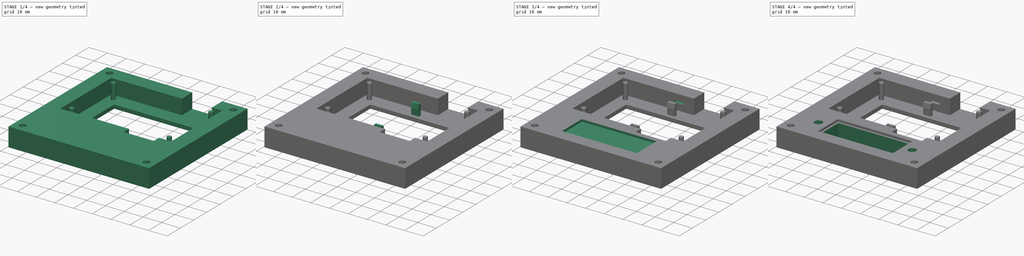
[diagram: build sequence overview — one tinted view per stage of 4, left to right]
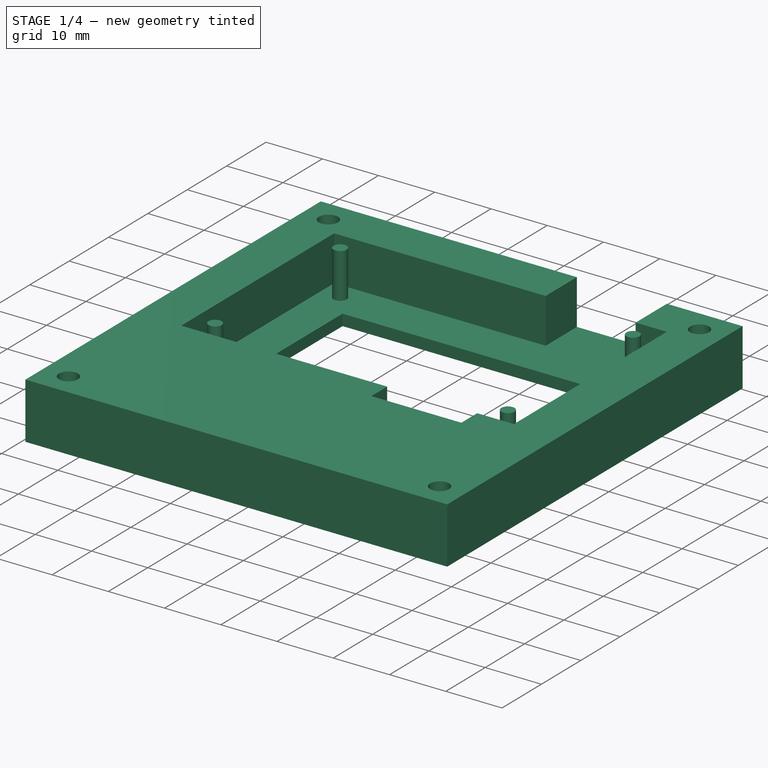
[diagram: stage 1 of 4 — iso view after this stage's code; geometry added in this stage tinted green]
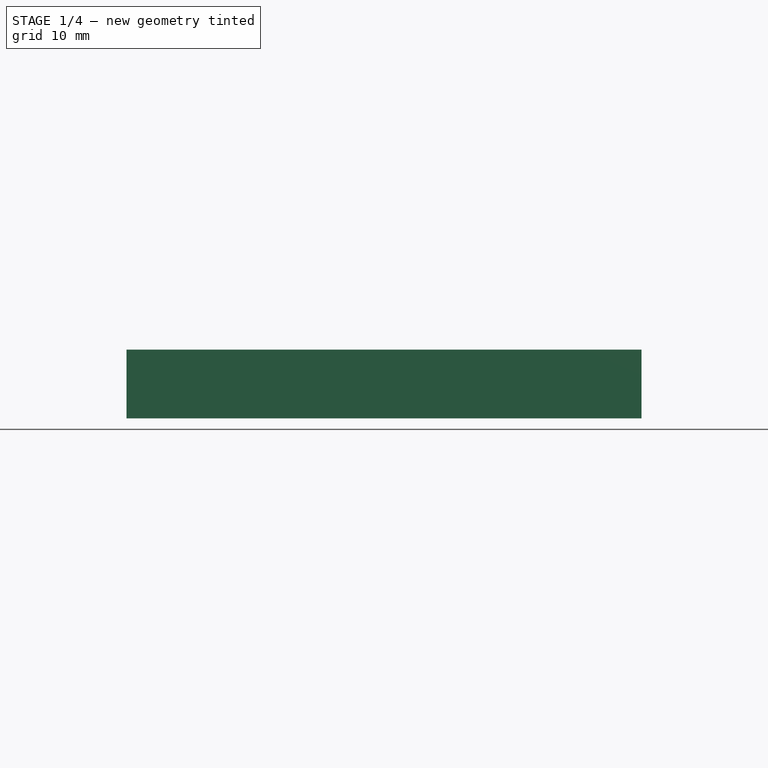
[diagram: stage 1 of 4 — front view after this stage's code; geometry added in this stage tinted green]
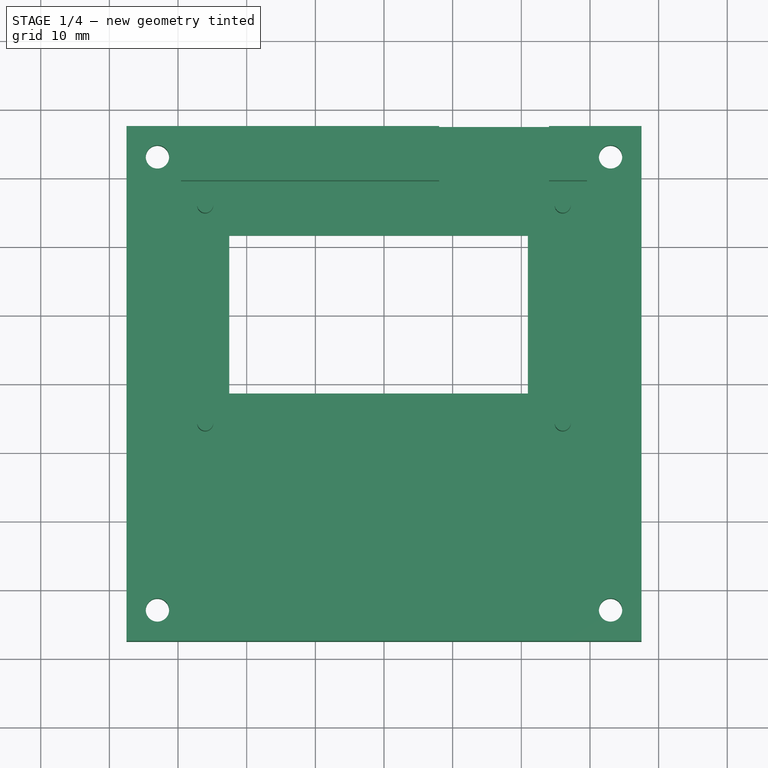
[diagram: stage 1 of 4 — top view after this stage's code; geometry added in this stage tinted green]
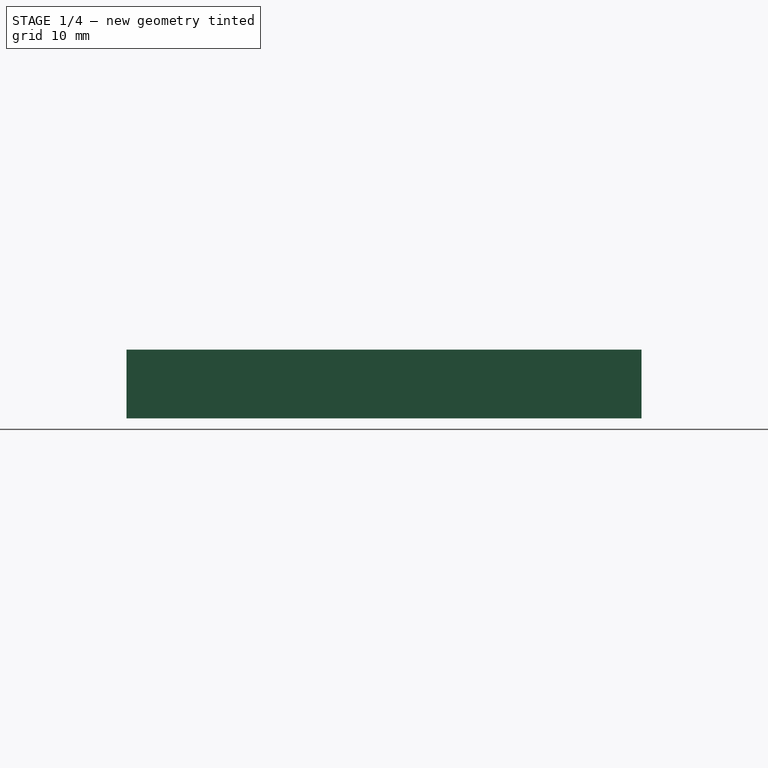
[diagram: stage 1 of 4 — right view after this stage's code; geometry added in this stage tinted green]
FCSTD DOCUMENT  (FreeCAD 1.0R39285 (Git))
Label: Front case
License: Creative Commons Attribution-ShareAlike 4.0
LicenseURL: https://creativecommons.org/licenses/by-sa/4.0/
objects: Sketcher::SketchObject×12, PartDesign::Pocket×7, PartDesign::Pad×4, PartDesign::LinearPattern×2, PartDesign::Hole×1, PartDesign::Plane×1, PartDesign::Mirrored×1, PartDesign::MultiTransform×1, PartDesign::Body×1
note: 70 computed .brp shape members not serialized (recipe doc carries the construction recipe); baked Part::Feature solids carry a one-line shape summary decoded from their .brp

FEATURE [Sketcher::SketchObject] Sketch
  ArcFitTolerance = 1e-06
  AttachmentSupport = -> [XY_Plane]
  FullyConstrained = true
  MakeInternals = false
  MapMode = 5
  sketch-geometry (5):
    g0: LineSegment StartX=-37.5 StartY=37.5 StartZ=0 EndX=-37.5 EndY=-37.5 EndZ=0
    g1: LineSegment StartX=-37.5 StartY=-37.5 StartZ=0 EndX=37.5 EndY=-37.5 EndZ=0
    g2: LineSegment StartX=37.5 StartY=-37.5 StartZ=0 EndX=37.5 EndY=37.5 EndZ=0
    g3: LineSegment StartX=37.5 StartY=37.5 StartZ=0 EndX=-37.5 EndY=37.5 EndZ=0
    g4: GeomPoint [constr] X=0 Y=0 Z=0
  constraints (12):
    c: Coincident(g0,g1)
    c: Coincident(g1,g2)
    c: Coincident(g2,g3)
    c: Coincident(g3,g0)
    c: Vertical(g0)
    c: Vertical(g2)
    c: Horizontal(g1)
    c: Horizontal(g3)
    c: Symmetric(g2,g0,g4)
    c: Coincident(g4,g-1)
    c: DistanceX(g1,g1) = 75
    c: DistanceY(g2,g2) = 75
FEATURE [PartDesign::Pad] Pad
  Direction = (0,0,1)
  Length = 10
  Length2 = 10
  Profile = -> Sketch
  ReferenceAxis = -> Sketch [N_Axis]
  Suppressed = false
  Type = 0
FEATURE [Sketcher::SketchObject] Sketch001
  ArcFitTolerance = 1e-06
  AttachmentSupport = -> [Pad]
  ExternalGeometry = -> [Pad]
  FullyConstrained = true
  MakeInternals = false
  MapMode = 5
  Placement = pos=(0,0,10) rot=(0,0,1;0rad)
  sketch-geometry (18):
    g0: LineSegment StartX=-29.575 StartY=29.58 StartZ=0 EndX=-29.575 EndY=-9.25 EndZ=0
    g1: LineSegment StartX=29.575 StartY=-9.25 StartZ=0 EndX=29.575 EndY=29.58 EndZ=0
    g2: GeomPoint [constr] X=0 Y=0 Z=0
    g3: Circle CenterX=-26.035 CenterY=26.04 CenterZ=0 NormalX=0 NormalY=0 NormalZ=1 AngleXU=0 Radius=1.17
    g4: Circle CenterX=26.035 CenterY=26.04 CenterZ=0 NormalX=0 NormalY=0 NormalZ=1 AngleXU=0 Radius=1.17
    g5: Circle CenterX=-26.035 CenterY=-5.71 CenterZ=0 NormalX=0 NormalY=0 NormalZ=1 AngleXU=0 Radius=1.17
    g6: Circle CenterX=26.035 CenterY=-5.71 CenterZ=0 NormalX=0 NormalY=0 NormalZ=1 AngleXU=0 Radius=1.17
    g7: LineSegment [constr] StartX=-29.575 StartY=10.165 StartZ=0 EndX=29.575 EndY=10.165 EndZ=0
    g8: LineSegment StartX=8.035 StartY=29.58 StartZ=0 EndX=8.035 EndY=37.5 EndZ=0
    g9: LineSegment StartX=8.035 StartY=37.5 StartZ=0 EndX=24.035 EndY=37.5 EndZ=0
    g10: LineSegment StartX=24.035 StartY=37.5 StartZ=0 EndX=24.035 EndY=29.58 EndZ=0
    g11: LineSegment StartX=-29.575 StartY=29.58 StartZ=0 EndX=8.035 EndY=29.58 EndZ=0
    g12: LineSegment StartX=24.035 StartY=29.58 StartZ=0 EndX=29.575 EndY=29.58 EndZ=0
    g13: LineSegment StartX=-29.575 StartY=-9.25 StartZ=0 EndX=7.035 EndY=-9.25 EndZ=0
    g14: LineSegment StartX=7.035 StartY=-9.25 StartZ=0 EndX=7.035 EndY=-13.25 EndZ=0
    g15: LineSegment StartX=7.035 StartY=-13.25 StartZ=0 EndX=23.035 EndY=-13.25 EndZ=0
    g16: LineSegment StartX=23.035 StartY=-13.25 StartZ=0 EndX=23.035 EndY=-9.25 EndZ=0
    g17: LineSegment StartX=23.035 StartY=-9.25 StartZ=0 EndX=29.575 EndY=-9.25 EndZ=0
  constraints (48):
    c: Vertical(g0)
    c: Vertical(g1)
    c: Coincident(g2,g-1)
    c: DistanceX(g0,g1) = 59.15
    c: DistanceY(g1,g1) = 38.83
    c: Diameter(g5) = 2.34
    c: Equal(g5,g3)
    c: Equal(g3,g4)
    c: Equal(g4,g6)
    c: Horizontal(g6,g5)
    c: DistanceY(g5,g3) = 31.75
    c: DistanceX(g5,g6) = 52.07
    c: Symmetric(g3,g4,g-2)
    c: DistanceY(g1,g-4) = 7.92
    c: Symmetric(g0,g1,g-2)
    c: Symmetric(g0,g0,g7)
    c: Symmetric(g1,g1,g7)
    c: Symmetric(g4,g6,g7)
    c: Vertical(g5,g3)
    c: PointOnObject(g8,g-3)
    c: Coincident(g9,g8)
    c: PointOnObject(g9,g-3)
    c: Coincident(g10,g9)
    c: Vertical(g10)
    c: Vertical(g8)
    c: Coincident(g11,g0)
    c: Coincident(g11,g8)
    c: Horizontal(g11)
    c: Coincident(g12,g10)
    c: Coincident(g12,g1)
    c: Horizontal(g12)
    c: Coincident(g13,g0)
    c: Horizontal(g13)
    c: Coincident(g14,g13)
    c: Coincident(g15,g14)
    c: Horizontal(g15)
    c: Coincident(g16,g15)
    c: Vertical(g16)
    c: Coincident(g17,g1)
    c: Horizontal(g17)
    c: Vertical(g14)
    c: Coincident(g17,g16)
    c: DistanceX(g10,g4) = 2
    c: DistanceX(g9,g9) = 16
    c: Horizontal(g13,g16)
    c: DistanceX(g16,g6) = 3
    c: DistanceX(g15,g15) = 16
    c: DistanceY(g16,g16) = 4
FEATURE [PartDesign::Pocket] Pocket
  BaseFeature = -> Pad
  Direction = (0,0,-1)
  Length = 8
  Length2 = 5
  Profile = -> Sketch001
  ReferenceAxis = -> Sketch001 [N_Axis]
  Suppressed = false
  Type = 0
FEATURE [Sketcher::SketchObject] Sketch002
  ArcFitTolerance = 1e-06
  AttachmentSupport = -> [Pocket]
  ExternalGeometry = -> [Pocket]
  FullyConstrained = true
  MakeInternals = false
  MapMode = 5
  Placement = pos=(0,0,2) rot=(0,0,1;0rad)
  sketch-geometry (7):
    g0: LineSegment StartX=-22.535 StartY=21.665 StartZ=0 EndX=-22.535 EndY=-1.335 EndZ=0
    g1: LineSegment StartX=-22.535 StartY=-1.335 StartZ=0 EndX=20.965 EndY=-1.335 EndZ=0
    g2: LineSegment StartX=20.965 StartY=-1.335 StartZ=0 EndX=20.965 EndY=21.665 EndZ=0
    g3: LineSegment StartX=20.965 StartY=21.665 StartZ=0 EndX=-22.535 EndY=21.665 EndZ=0
    g4: LineSegment [constr] StartX=-26.035 StartY=26.04 StartZ=0 EndX=-26.035 EndY=-5.71 EndZ=0
    g5: GeomPoint X=-26.035 Y=10.165 Z=0
    g6: GeomPoint X=-22.535 Y=10.165 Z=0
  constraints (17):
    c: Coincident(g0,g1)
    c: Coincident(g1,g2)
    c: Coincident(g2,g3)
    c: Coincident(g3,g0)
    c: Vertical(g0)
    c: Horizontal(g1)
    c: Horizontal(g3)
    c: DistanceX(g1,g1) = 43.5
    c: DistanceY(g2,g2) = 23
    c: DistanceX(g-3,g0) = 3.5
    c: Coincident(g4,g-3)
    c: Coincident(g4,g-4)
    c: Symmetric(g4,g4,g5)
    c: Symmetric(g0,g0,g6)
    c: Horizontal(g5,g6)
    c: Vertical(g2)
    c: DistanceY(g-1,g6) = 10.165  'vertical_display_offset'
FEATURE [PartDesign::Pocket] Pocket001
  BaseFeature = -> Pocket
  Direction = (0,0,-1)
  Length = 5
  Length2 = 5
  Profile = -> Sketch002
  ReferenceAxis = -> Sketch002 [N_Axis]
  Suppressed = false
  Type = 1
FEATURE [Sketcher::SketchObject] Sketch003
  ArcFitTolerance = 1e-06
  AttachmentSupport = -> [Pocket001]
  ExternalGeometry = -> [Pocket001]
  FullyConstrained = true
  MakeInternals = false
  MapMode = 5
  Placement = pos=(0,0,0) rot=(1,0,0;3.14159rad)
  sketch-geometry (4):
    g0: Circle CenterX=-33 CenterY=33 CenterZ=0 NormalX=0 NormalY=0 NormalZ=1 AngleXU=0 Radius=3.25
    g1: Circle CenterX=-33 CenterY=-33 CenterZ=0 NormalX=0 NormalY=0 NormalZ=1 AngleXU=0 Radius=3.25
    g2: Circle CenterX=33 CenterY=-33 CenterZ=0 NormalX=0 NormalY=0 NormalZ=1 AngleXU=0 Radius=3.25
    g3: Circle CenterX=33 CenterY=33 CenterZ=0 NormalX=0 NormalY=0 NormalZ=1 AngleXU=0 Radius=3.25
  constraints (10):
    c: Horizontal(g0,g3)
    c: Symmetric(g3,g2,g-1)
    c: Vertical(g0,g1)
    c: Symmetric(g1,g2,g-2)
    c: Equal(g1,g0)
    c: Equal(g0,g3)
    c: Equal(g3,g2)
    c: Diameter(g0) = 6.5
    c: DistanceX(g-4,g0) = 4.5
    c: DistanceY(g0,g-4) = 4.5
FEATURE [PartDesign::Hole] Hole
  BaseFeature = -> Pocket001
  CustomThreadClearance = 0
  Depth = 25
  DepthType = 0
  Diameter = 3.4
  DrillForDepth = false
  DrillPoint = 1
  DrillPointAngle = 118
  HoleCutCountersinkAngle = 90
  HoleCutCustomValues = false
  HoleCutDepth = 3
  HoleCutDiameter = 6
  HoleCutType = 1
  ModelThread = false
  Profile = -> Sketch003
  Suppressed = false
  Tapered = false
  TaperedAngle = 90
  ThreadClass = 0
  ThreadDepth = 25
  ThreadDepthType = 0
  ThreadDirection = 0
  ThreadFit = 0
  ThreadSize = 0
  ThreadType = 0
  Threaded = false
  UseCustomThreadClearance = false
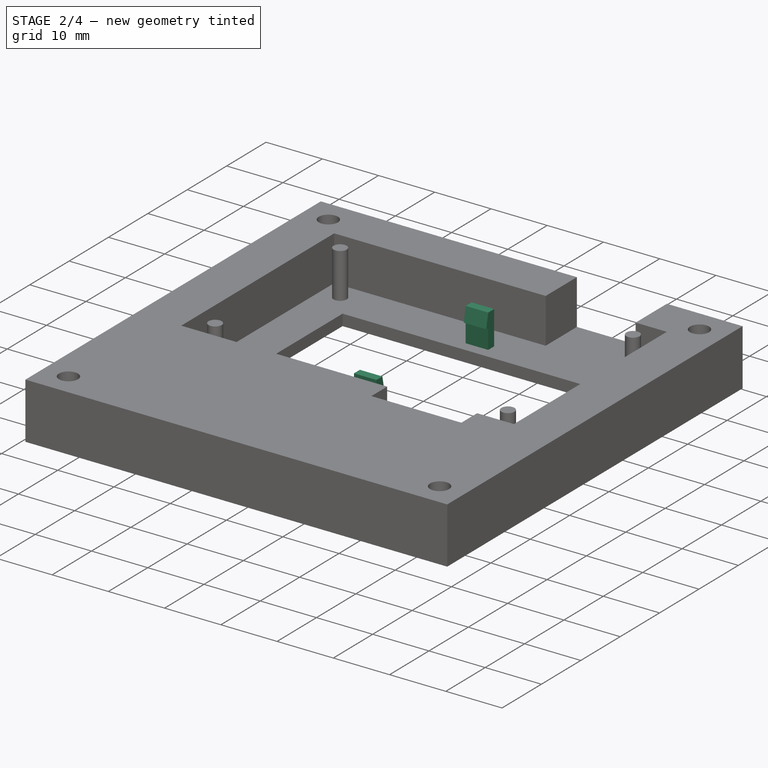
[diagram: stage 2 of 4 — iso view after this stage's code; geometry added in this stage tinted green]
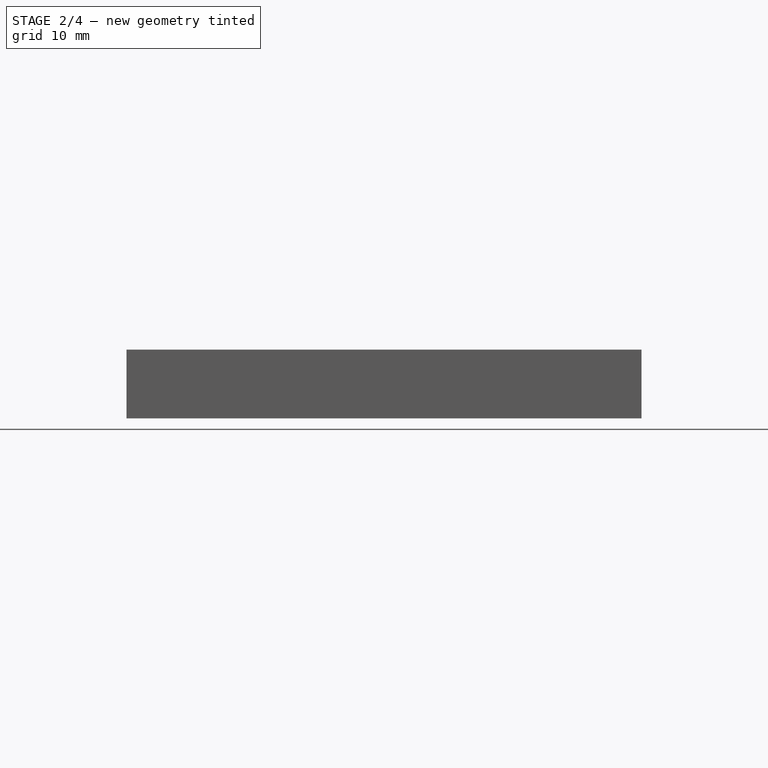
[diagram: stage 2 of 4 — front view after this stage's code; geometry added in this stage tinted green]
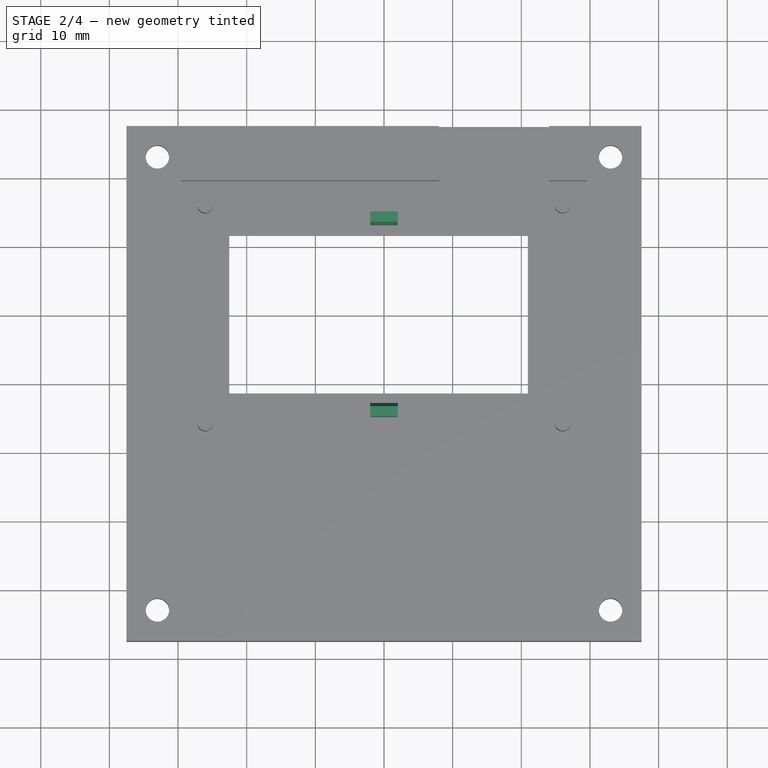
[diagram: stage 2 of 4 — top view after this stage's code; geometry added in this stage tinted green]
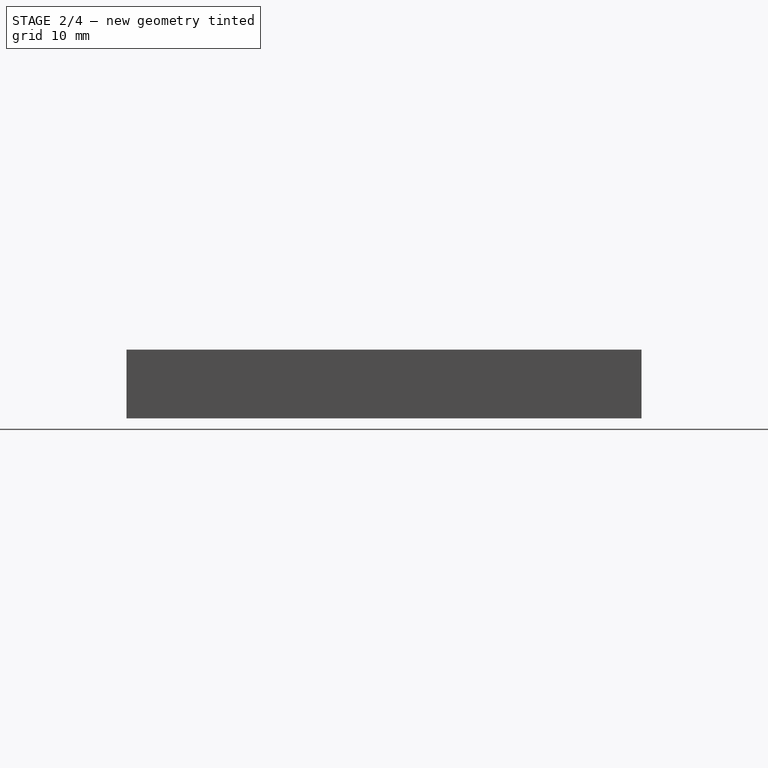
[diagram: stage 2 of 4 — right view after this stage's code; geometry added in this stage tinted green]
FEATURE [Sketcher::SketchObject] Sketch004
  ArcFitTolerance = 1e-06
  AttachmentSupport = -> [Hole]
  ExternalGeometry = -> [Hole]
  FullyConstrained = true
  MakeInternals = false
  MapMode = 5
  Placement = pos=(0,0,2) rot=(0,0,1;0rad)
  sketch-geometry (13):
    g0: LineSegment StartX=-2 StartY=25.1 StartZ=0 EndX=-2 EndY=23.6 EndZ=0
    g1: LineSegment StartX=-2 StartY=23.6 StartZ=0 EndX=2 EndY=23.6 EndZ=0
    g2: LineSegment StartX=2 StartY=23.6 StartZ=0 EndX=2 EndY=25.1 EndZ=0
    g3: LineSegment StartX=2 StartY=25.1 StartZ=0 EndX=-2 EndY=25.1 EndZ=0
    g4: GeomPoint [constr] X=0 Y=24.35 Z=0
    g5: LineSegment StartX=-2 StartY=-3.27 StartZ=0 EndX=-2 EndY=-4.77 EndZ=0
    g6: LineSegment StartX=-2 StartY=-4.77 StartZ=0 EndX=2 EndY=-4.77 EndZ=0
    g7: LineSegment StartX=2 StartY=-4.77 StartZ=0 EndX=2 EndY=-3.27 EndZ=0
    g8: LineSegment StartX=2 StartY=-3.27 StartZ=0 EndX=-2 EndY=-3.27 EndZ=0
    g9: GeomPoint [constr] X=0 Y=-4.02 Z=0
    g10: GeomPoint X=-22.535 Y=10.165 Z=0
    g11: GeomPoint X=20.965 Y=10.165 Z=0
    g12: LineSegment [constr] StartX=-22.535 StartY=10.165 StartZ=0 EndX=20.965 EndY=10.165 EndZ=0
  constraints (29):
    c: Coincident(g0,g1)
    c: Coincident(g1,g2)
    c: Coincident(g2,g3)
    c: Coincident(g3,g0)
    c: Vertical(g0)
    c: Vertical(g2)
    c: Horizontal(g1)
    c: Horizontal(g3)
    c: Symmetric(g2,g0,g4)
    c: PointOnObject(g4,g-2)
    c: Coincident(g5,g6)
    c: Coincident(g6,g7)
    c: Coincident(g7,g8)
    c: Coincident(g8,g5)
    c: Vertical(g5)
    c: Vertical(g7)
    c: Horizontal(g6)
    c: Horizontal(g8)
    c: Symmetric(g7,g5,g9)
    c: DistanceY(g7,g7) = 1.5
    c: DistanceX(g6,g6) = 4
    c: DistanceY(g5,g0) = 26.87
    c: Symmetric(g-3,g-3,g10)
    c: Symmetric(g-4,g-4,g11)
    c: Coincident(g12,g10)
    c: Coincident(g12,g11)
    c: Symmetric(g4,g9,g12)
    c: Equal(g8,g3)
    c: Equal(g7,g2)
FEATURE [PartDesign::Pad] Pad001
  BaseFeature = -> Hole
  Direction = (0,0,1)
  Length = 6
  Length2 = 10
  Profile = -> Sketch004
  ReferenceAxis = -> Sketch004 [N_Axis]
  Suppressed = false
  Type = 0
FEATURE [Sketcher::SketchObject] Sketch005
  ArcFitTolerance = 1e-06
  AttachmentSupport = -> [Pad001]
  ExternalGeometry = -> [Pad001]
  FullyConstrained = true
  MakeInternals = false
  MapMode = 5
  Placement = pos=(2,0,0) rot=(0.57735,0.57735,0.57735;2.0944rad)
  sketch-geometry (6):
    g0: LineSegment StartX=-3.27 StartY=8 StartZ=0 EndX=-3.27 EndY=5.5 EndZ=0
    g1: LineSegment StartX=-3.27 StartY=5.5 StartZ=0 EndX=-2.77 EndY=5.5 EndZ=0
    g2: LineSegment StartX=-2.77 StartY=5.5 StartZ=0 EndX=-3.27 EndY=8 EndZ=0
    g3: LineSegment StartX=23.6 StartY=8 StartZ=0 EndX=23.6 EndY=5.5 EndZ=0
    g4: LineSegment StartX=23.6 StartY=5.5 StartZ=0 EndX=23.1 EndY=5.5 EndZ=0
    g5: LineSegment StartX=23.1 StartY=5.5 StartZ=0 EndX=23.6 EndY=8 EndZ=0
  constraints (16):
    c: Coincident(g0,g-3)
    c: Coincident(g1,g0)
    c: Horizontal(g1)
    c: Coincident(g2,g1)
    c: Coincident(g2,g0)
    c: Coincident(g3,g-4)
    c: Coincident(g4,g3)
    c: Horizontal(g4)
    c: Coincident(g5,g3)
    c: Vertical(g0)
    c: DistanceY(g-3,g0) = 3.5
    c: DistanceX(g1,g1) = 0.5
    c: Coincident(g5,g4)
    c: Vertical(g3)
    c: Horizontal(g1,g4)
    c: Equal(g1,g4)
FEATURE [PartDesign::Pad] Pad002
  BaseFeature = -> Pad001
  Direction = (1,0,0)
  Length = 4
  Length2 = 10
  Profile = -> Sketch005
  ReferenceAxis = -> Sketch005 [N_Axis]
  Reversed = true
  Suppressed = false
  Type = 0
FEATURE [Sketcher::SketchObject] Sketch006
  ArcFitTolerance = 1e-06
  AttachmentSupport = -> [Pad002]
  FullyConstrained = true
  MakeInternals = false
  MapMode = 5
  Placement = pos=(0,-9.25,0) rot=(0,0.707107,0.707107;3.14159rad)
  sketch-geometry (8):
    g0: LineSegment StartX=-2.5 StartY=6.5 StartZ=0 EndX=-2.5 EndY=5.5 EndZ=0
    g1: LineSegment StartX=-2.5 StartY=5.5 StartZ=0 EndX=2.5 EndY=5.5 EndZ=0
    g2: LineSegment StartX=2.5 StartY=5.5 StartZ=0 EndX=2.5 EndY=6.5 EndZ=0
    g3: LineSegment StartX=2.5 StartY=6.5 StartZ=0 EndX=-2.5 EndY=6.5 EndZ=0
    g4: LineSegment [constr] StartX=29.575 StartY=10 StartZ=0 EndX=-29.575 EndY=2 EndZ=0
    g5: GeomPoint X=-1.5e-15 Y=6 Z=0
    g6: GeomPoint X=-7e-16 Y=6 Z=0
    g7: GeomPoint X=-7e-16 Y=6 Z=0
  constraints (15):
    c: Coincident(g0,g1)
    c: Coincident(g1,g2)
    c: Coincident(g2,g3)
    c: Coincident(g3,g0)
    c: Vertical(g0)
    c: Horizontal(g1)
    c: DistanceY(g2,g2) = 1
    c: Symmetric(g0,g2,g-2)
    c: Coincident(g4,g-4)
    c: Coincident(g4,g-3)
    c: Symmetric(g4,g4,g5)
    c: Symmetric(g4,g4,g6)
    c: Symmetric(g4,g4,g7)
    c: Symmetric(g0,g1,g5)
    c: DistanceX(g3,g3) = 5
FEATURE [PartDesign::Pocket] Pocket002
  BaseFeature = -> Pad002
  Direction = (0,-1,2e-16)
  Length = 3
  Length2 = 5
  Profile = -> Sketch006
  ReferenceAxis = -> Sketch006 [N_Axis]
  Suppressed = false
  Type = 0
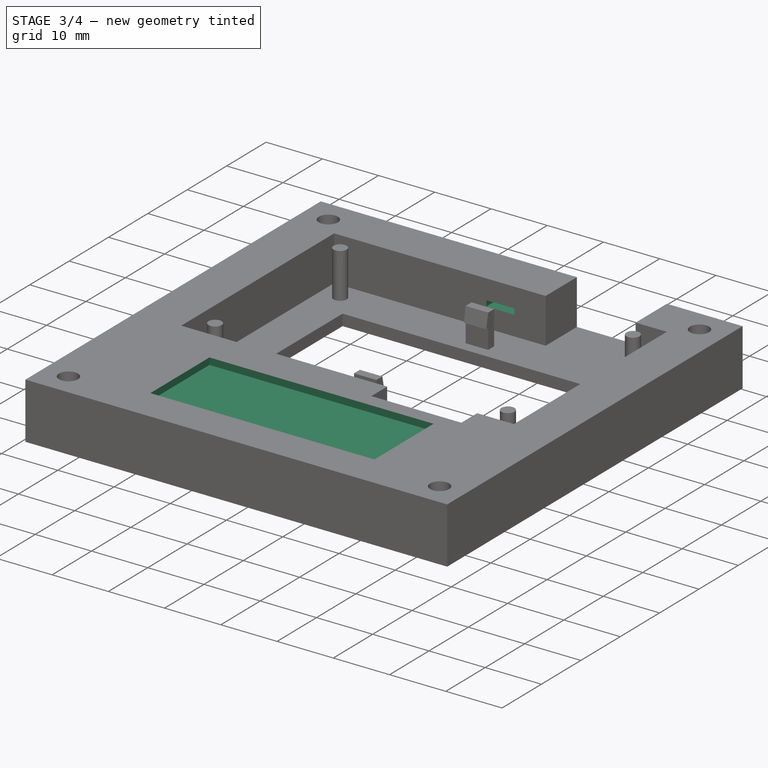
[diagram: stage 3 of 4 — iso view after this stage's code; geometry added in this stage tinted green]
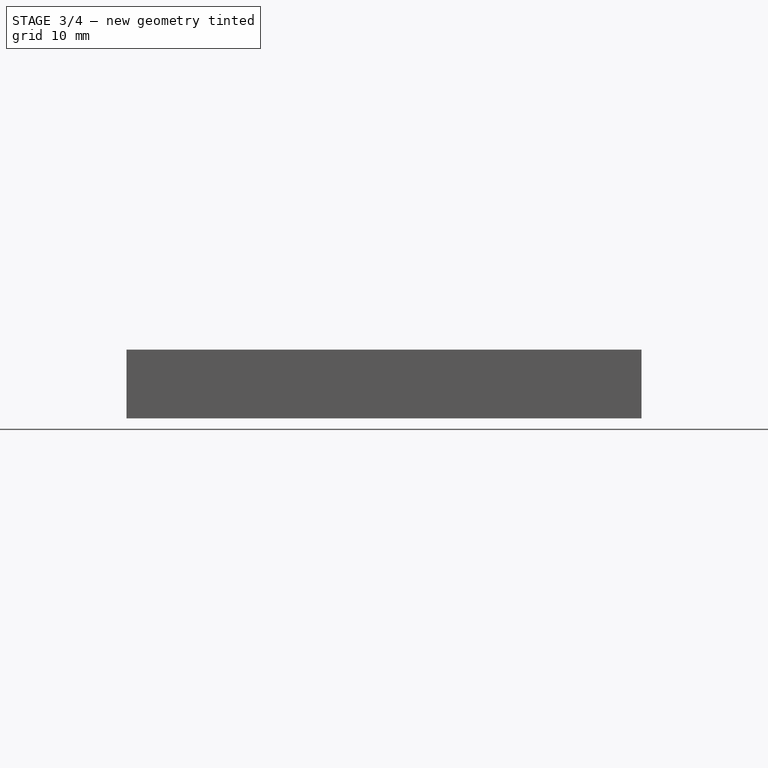
[diagram: stage 3 of 4 — front view after this stage's code; geometry added in this stage tinted green]
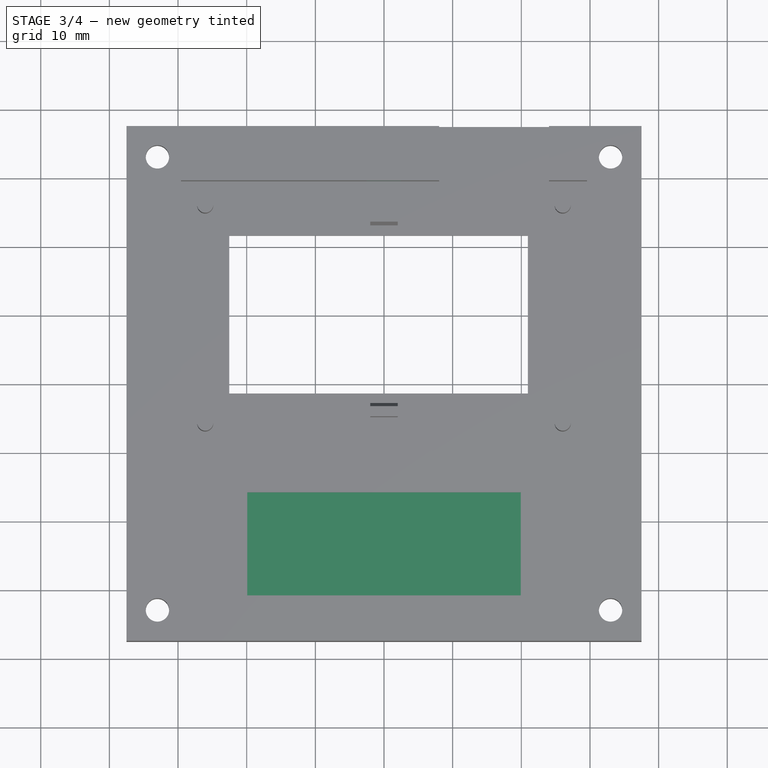
[diagram: stage 3 of 4 — top view after this stage's code; geometry added in this stage tinted green]
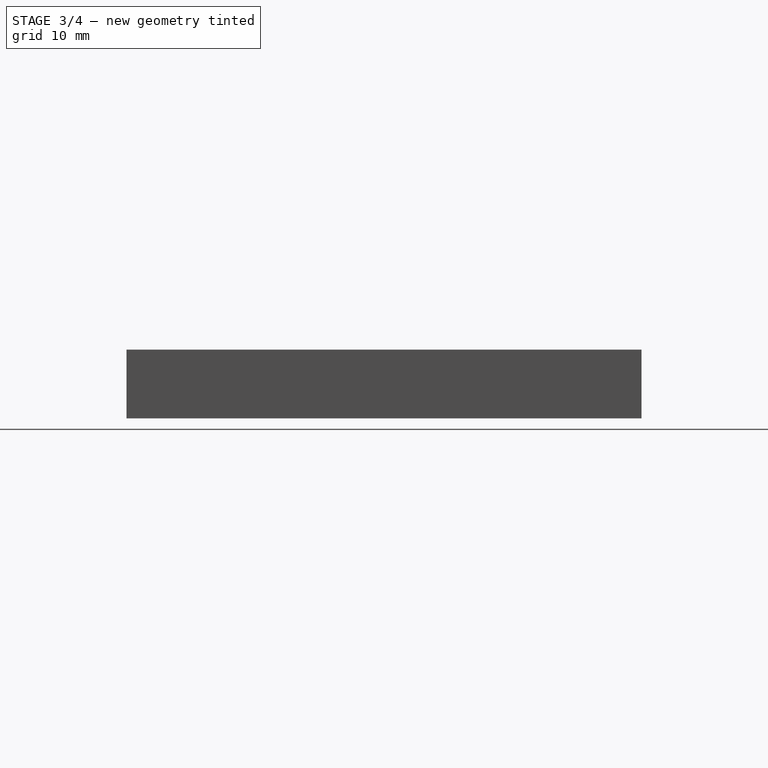
[diagram: stage 3 of 4 — right view after this stage's code; geometry added in this stage tinted green]
FEATURE [PartDesign::Plane] DatumPlane
  AttachmentOffset = pos=(0,0,-10.165) rot=(0,0,1;0rad)
  AttachmentSupport = -> [Pocket002]
  Length = 87.2474
  MapMode = 3
  Placement = pos=(0,10.165,-2.3e-15) rot=(1,0,0;1.5708rad)
  ResizeMode = 0
  Width = 62.2474
  expr: .AttachmentOffset.Base.z = -Sketch002.Constraints.vertical_display_offset
FEATURE [PartDesign::Mirrored] Mirrored
  BaseFeature = -> Pocket002
  MirrorPlane = -> DatumPlane
  Originals = -> [Pocket002]
  Suppressed = false
  TransformMode = 0
FEATURE [Sketcher::SketchObject] Sketch007
  ArcFitTolerance = 1e-06
  AttachmentSupport = -> [Mirrored]
  ExternalGeometry = -> [Mirrored]
  FullyConstrained = true
  MakeInternals = false
  MapMode = 5
  Placement = pos=(0,0,10) rot=(0,0,1;0rad)
  sketch-geometry (8):
    g0: LineSegment StartX=-19.925 StartY=-15.875 StartZ=0 EndX=-19.925 EndY=-30.875 EndZ=0
    g1: LineSegment StartX=-19.925 StartY=-30.875 StartZ=0 EndX=19.925 EndY=-30.875 EndZ=0
    g2: LineSegment StartX=19.925 StartY=-30.875 StartZ=0 EndX=19.925 EndY=-15.875 EndZ=0
    g3: LineSegment StartX=19.925 StartY=-15.875 StartZ=0 EndX=-19.925 EndY=-15.875 EndZ=0
    g4: GeomPoint [constr] X=0 Y=-23.375 Z=0
    g5: LineSegment [constr] StartX=-29.575 StartY=-9.25 StartZ=0 EndX=-37.5 EndY=-37.5 EndZ=0
    g6: GeomPoint X=-33.5375 Y=-23.375 Z=0
    g7: GeomPoint X=-19.925 Y=-23.375 Z=0
  constraints (17):
    c: Coincident(g0,g1)
    c: Coincident(g1,g2)
    c: Coincident(g2,g3)
    c: Coincident(g3,g0)
    c: Vertical(g0)
    c: Vertical(g2)
    c: Horizontal(g1)
    c: Horizontal(g3)
    c: Symmetric(g2,g0,g4)
    c: PointOnObject(g4,g-2)
    c: Coincident(g5,g-3)
    c: Coincident(g5,g-4)
    c: Symmetric(g5,g5,g6)
    c: Symmetric(g0,g0,g7)
    c: Horizontal(g6,g7)
    c: DistanceX(g3,g3) = 39.85
    c: DistanceY(g2,g2) = 15
FEATURE [PartDesign::Pocket] Pocket003
  BaseFeature = -> Mirrored
  Direction = (0,0,-1)
  Length = 1.2
  Length2 = 5
  Profile = -> Sketch007
  ReferenceAxis = -> Sketch007 [N_Axis]
  Suppressed = false
  Type = 0
FEATURE [Sketcher::SketchObject] Sketch008
  ArcFitTolerance = 1e-06
  AttachmentSupport = -> [Pocket003]
  ExternalGeometry = -> [Pocket003]
  FullyConstrained = true
  MakeInternals = false
  MapMode = 5
  Placement = pos=(0,0,0) rot=(1,0,0;3.14159rad)
  sketch-geometry (8):
    g0: LineSegment StartX=5.25 StartY=29.875 StartZ=0 EndX=5 EndY=29.875 EndZ=0
    g1: LineSegment StartX=5 StartY=29.875 StartZ=0 EndX=5 EndY=18.625 EndZ=0
    g2: LineSegment StartX=5 StartY=18.625 StartZ=0 EndX=-5 EndY=18.625 EndZ=0
    g3: LineSegment StartX=-5 StartY=18.625 StartZ=0 EndX=-5 EndY=29.875 EndZ=0
    g4: LineSegment StartX=-5 StartY=29.875 StartZ=0 EndX=-5.25 EndY=29.875 EndZ=0
    g5: LineSegment StartX=-5.25 StartY=29.875 StartZ=0 EndX=-5.25 EndY=18.375 EndZ=0
    g6: LineSegment StartX=-5.25 StartY=18.375 StartZ=0 EndX=5.25 EndY=18.375 EndZ=0
    g7: LineSegment StartX=5.25 StartY=18.375 StartZ=0 EndX=5.25 EndY=29.875 EndZ=0
  constraints (23):
    c: Horizontal(g0)
    c: Coincident(g1,g0)
    c: Vertical(g1)
    c: Coincident(g2,g1)
    c: Coincident(g3,g2)
    c: Vertical(g3)
    c: Coincident(g4,g3)
    c: Horizontal(g4)
    c: Coincident(g5,g4)
    c: Vertical(g5)
    c: Coincident(g6,g5)
    c: Horizontal(g6)
    c: Coincident(g7,g6)
    c: Coincident(g7,g0)
    c: Vertical(g7)
    c: Symmetric(g1,g2,g-2)
    c: DistanceX(g2,g2) = 10
    c: Equal(g0,g4)
    c: DistanceX(g0,g0) = 0.25
    c: DistanceY(g0,g-4) = 1
    c: DistanceY(g-5,g6) = 2.5
    c: DistanceY(g5,g2) = 0.25
    c: Horizontal(g3,g0)
FEATURE [PartDesign::Pocket] Pocket004
  BaseFeature = -> Pocket003
  Direction = (0,0,1)
  Length = 3
  Length2 = 5
  Profile = -> Sketch008
  ReferenceAxis = -> Sketch008 [N_Axis]
  Suppressed = false
  Type = 0
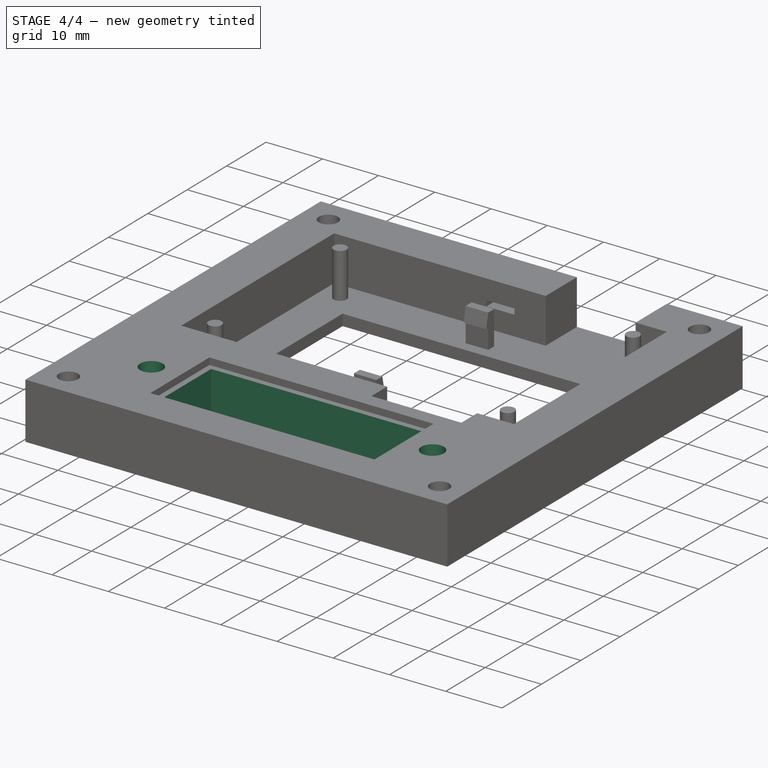
[diagram: stage 4 of 4 — iso view after this stage's code; geometry added in this stage tinted green]
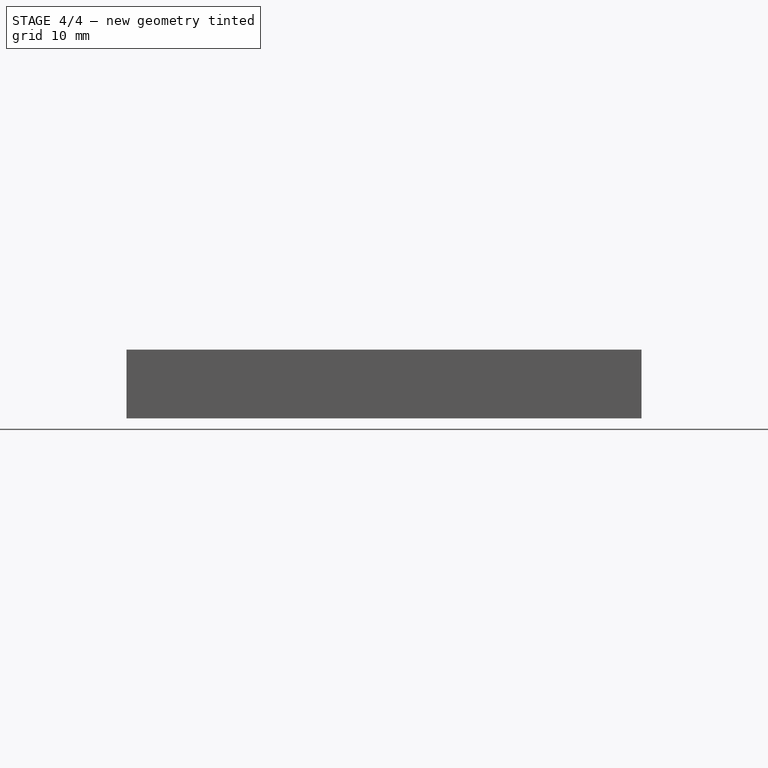
[diagram: stage 4 of 4 — front view after this stage's code; geometry added in this stage tinted green]
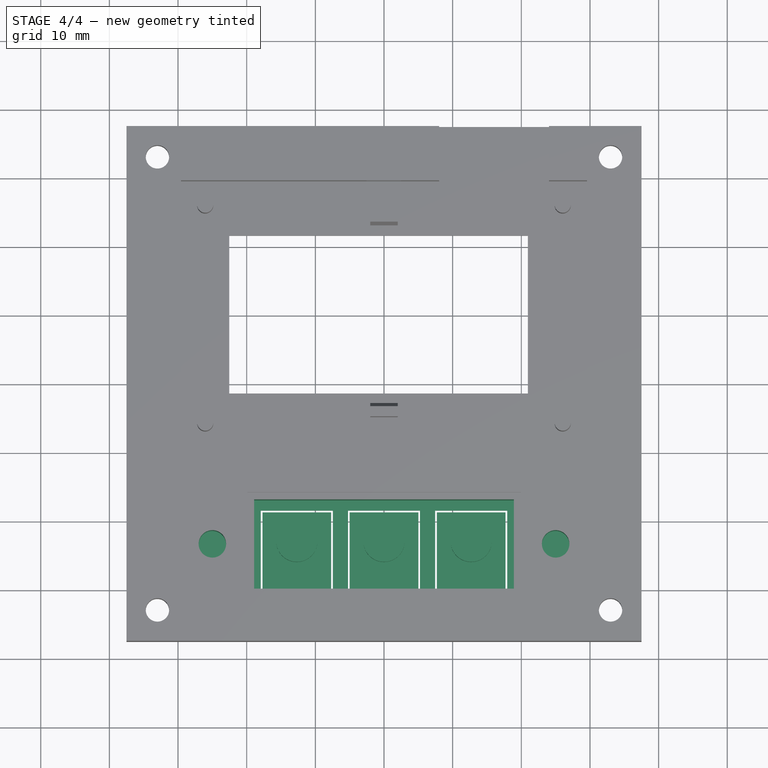
[diagram: stage 4 of 4 — top view after this stage's code; geometry added in this stage tinted green]
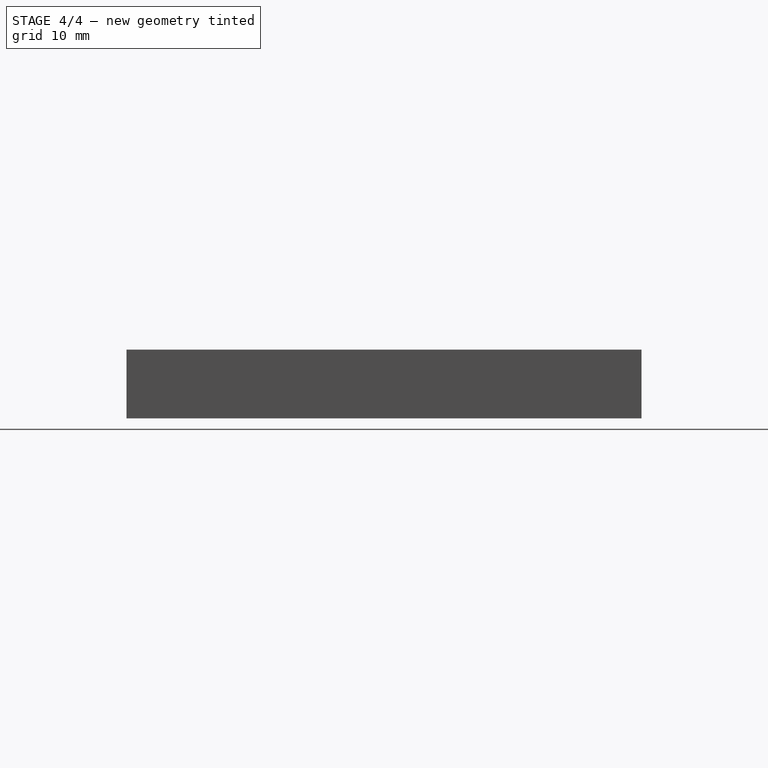
[diagram: stage 4 of 4 — right view after this stage's code; geometry added in this stage tinted green]
FEATURE [PartDesign::LinearPattern] LinearPattern
  Direction = -> Sketch008 [H_Axis]
  Length = 12.7
  Mode = 0
  Occurrences = 2
  Offset = 12.7
  Suppressed = false
  TransformMode = 0
FEATURE [PartDesign::LinearPattern] LinearPattern001
  Direction = -> Sketch008 [H_Axis]
  Length = 12.7
  Mode = 0
  Occurrences = 2
  Offset = 12.7
  Reversed = true
  Suppressed = false
  TransformMode = 0
FEATURE [PartDesign::MultiTransform] MultiTransform
  BaseFeature = -> Pocket004
  Originals = -> [Pocket004]
  Suppressed = false
  TransformMode = 0
  Transformations = -> [LinearPattern,LinearPattern001]
FEATURE [Sketcher::SketchObject] Sketch009
  ArcFitTolerance = 1e-06
  AttachmentSupport = -> [MultiTransform]
  ExternalGeometry = -> [MultiTransform]
  FullyConstrained = true
  MakeInternals = false
  MapMode = 5
  Placement = pos=(0,0,8.8) rot=(0,0,1;0rad)
  sketch-geometry (5):
    g0: LineSegment StartX=-18.925 StartY=-16.875 StartZ=0 EndX=-18.925 EndY=-29.875 EndZ=0
    g1: LineSegment StartX=-18.925 StartY=-29.875 StartZ=0 EndX=18.925 EndY=-29.875 EndZ=0
    g2: LineSegment StartX=18.925 StartY=-29.875 StartZ=0 EndX=18.925 EndY=-16.875 EndZ=0
    g3: LineSegment StartX=18.925 StartY=-16.875 StartZ=0 EndX=-18.925 EndY=-16.875 EndZ=0
    g4: GeomPoint [constr] X=0 Y=-23.375 Z=0
  constraints (13):
    c: Coincident(g0,g1)
    c: Coincident(g1,g2)
    c: Coincident(g2,g3)
    c: Coincident(g3,g0)
    c: Vertical(g0)
    c: Vertical(g2)
    c: Horizontal(g1)
    c: Horizontal(g3)
    c: Symmetric(g2,g0,g4)
    c: PointOnObject(g4,g-2)
    c: DistanceY(g0,g-5) = 1
    c: DistanceX(g-4,g0) = 1
    c: DistanceY(g-4,g0) = 1
FEATURE [PartDesign::Pocket] Pocket005
  BaseFeature = -> MultiTransform
  Direction = (0,0,-1)
  Length = 7.8
  Length2 = 5
  Profile = -> Sketch009
  ReferenceAxis = -> Sketch009 [N_Axis]
  Suppressed = false
  Type = 0
FEATURE [Sketcher::SketchObject] Sketch010
  ArcFitTolerance = 1e-06
  AttachmentSupport = -> [Pocket005]
  ExternalGeometry = -> [Pocket005]
  FullyConstrained = true
  MakeInternals = false
  MapMode = 5
  Placement = pos=(0,0,1) rot=(0,0,1;0rad)
  sketch-geometry (3):
    g0: Circle CenterX=0 CenterY=-22.875 CenterZ=0 NormalX=0 NormalY=0 NormalZ=1 AngleXU=0 Radius=3
    g1: Circle CenterX=-12.7 CenterY=-22.875 CenterZ=0 NormalX=0 NormalY=0 NormalZ=1 AngleXU=0 Radius=3
    g2: Circle CenterX=12.7 CenterY=-22.875 CenterZ=0 NormalX=0 NormalY=0 NormalZ=1 AngleXU=0 Radius=3
  constraints (8):
    c: PointOnObject(g0,g-2)
    c: Diameter(g0) = 6
    c: DistanceY(g0,g-3) = 7
    c: Equal(g0,g1)
    c: Equal(g1,g2)
    c: Symmetric(g1,g2,g0)
    c: Horizontal(g0,g2)
    c: DistanceX(g1,g2) = 25.4
FEATURE [PartDesign::Pad] Pad003
  BaseFeature = -> Pocket005
  Direction = (0,0,1)
  Length = 2.4
  Length2 = 10
  Profile = -> Sketch010
  ReferenceAxis = -> Sketch010 [N_Axis]
  Suppressed = false
  Type = 0
FEATURE [Sketcher::SketchObject] Sketch011
  ArcFitTolerance = 1e-06
  AttachmentSupport = -> [Pad003]
  ExternalGeometry = -> [Pad003]
  FullyConstrained = true
  MakeInternals = false
  MapMode = 5
  Placement = pos=(0,0,10) rot=(0,0,1;0rad)
  sketch-geometry (5):
    g0: GeomPoint X=-19.925 Y=-23.375 Z=0
    g1: GeomPoint X=19.925 Y=-23.375 Z=0
    g2: LineSegment [constr] StartX=-32.5 StartY=-23.375 StartZ=0 EndX=32.5 EndY=-23.375 EndZ=0
    g3: Circle CenterX=-25 CenterY=-23.375 CenterZ=0 NormalX=0 NormalY=0 NormalZ=1 AngleXU=0 Radius=2
    g4: Circle CenterX=25 CenterY=-23.375 CenterZ=0 NormalX=0 NormalY=0 NormalZ=1 AngleXU=0 Radius=2
  constraints (10):
    c: Symmetric(g-5,g-5,g0)
    c: Symmetric(g-6,g-6,g1)
    c: Symmetric(g2,g2,g-2)
    c: Horizontal(g2,g0)
    c: DistanceX(g2,g2) = 65
    c: PointOnObject(g3,g2)
    c: Equal(g3,g4)
    c: Symmetric(g4,g3,g-2)
    c: Diameter(g3) = 4
    c: DistanceX(g3,g4) = 50
FEATURE [PartDesign::Pocket] Pocket006
  BaseFeature = -> Pad003
  Direction = (0,0,-1)
  Length = 6.7
  Length2 = 5
  Profile = -> Sketch011
  ReferenceAxis = -> Sketch011 [N_Axis]
  Suppressed = false
  Type = 0
FEATURE [PartDesign::Body] Body
  AllowCompound = false
  Group = -> [Sketch,Pad,Sketch001,Pocket,Sketch002,Pocket001,Sketch003,Hole,Sketch004,Pad001,Sketch005,Pad002,Sketch006,Pocket002,DatumPlane,Mirrored,Sketch007,Pocket003,Sketch008,Pocket004,MultiTransform,LinearPattern,LinearPattern001,Sketch009,Pocket005,Sketch010,Pad003,Sketch011,Pocket006]
  Origin = -> Origin
  Tip = -> Pocket006
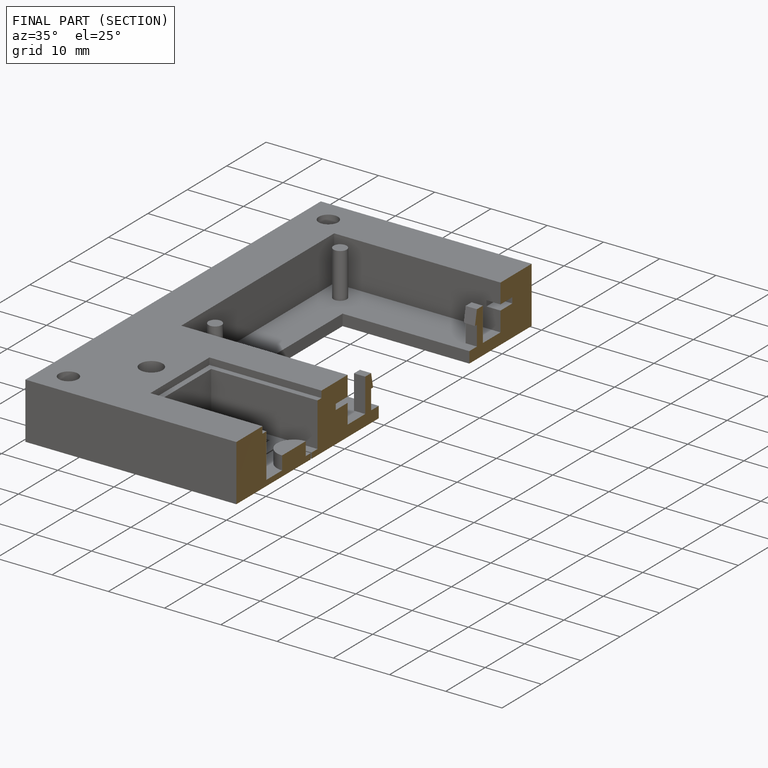
[diagram: finished part — half-section view (interior)]
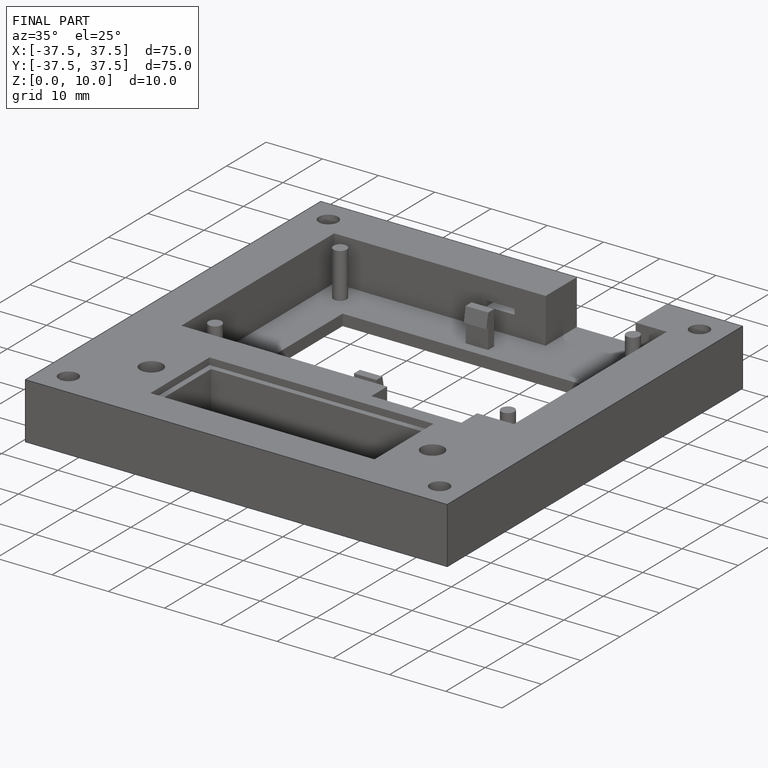
[diagram: finished part — iso view with bounding-box wireframe]
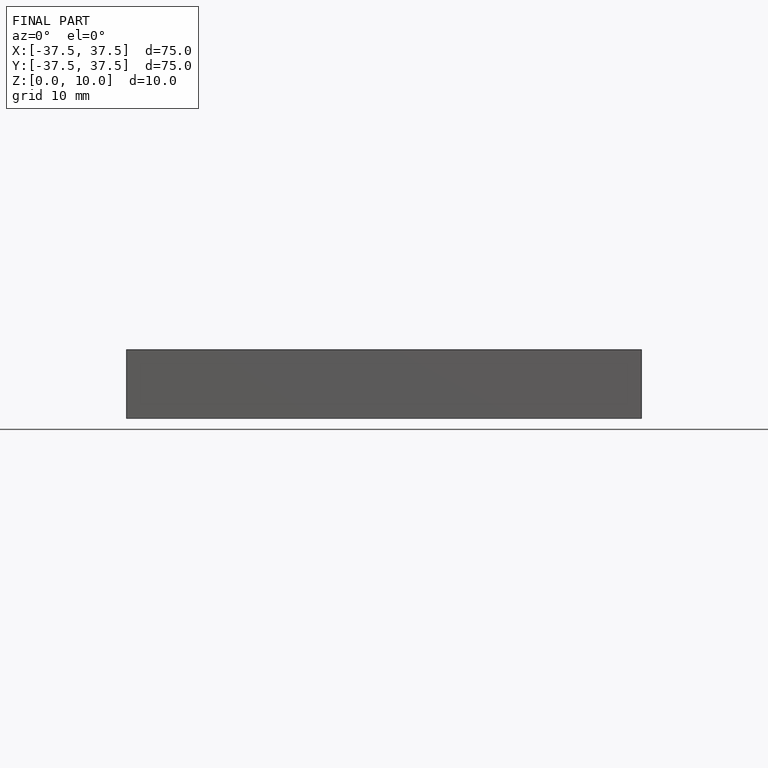
[diagram: finished part — front view with bounding-box wireframe]
